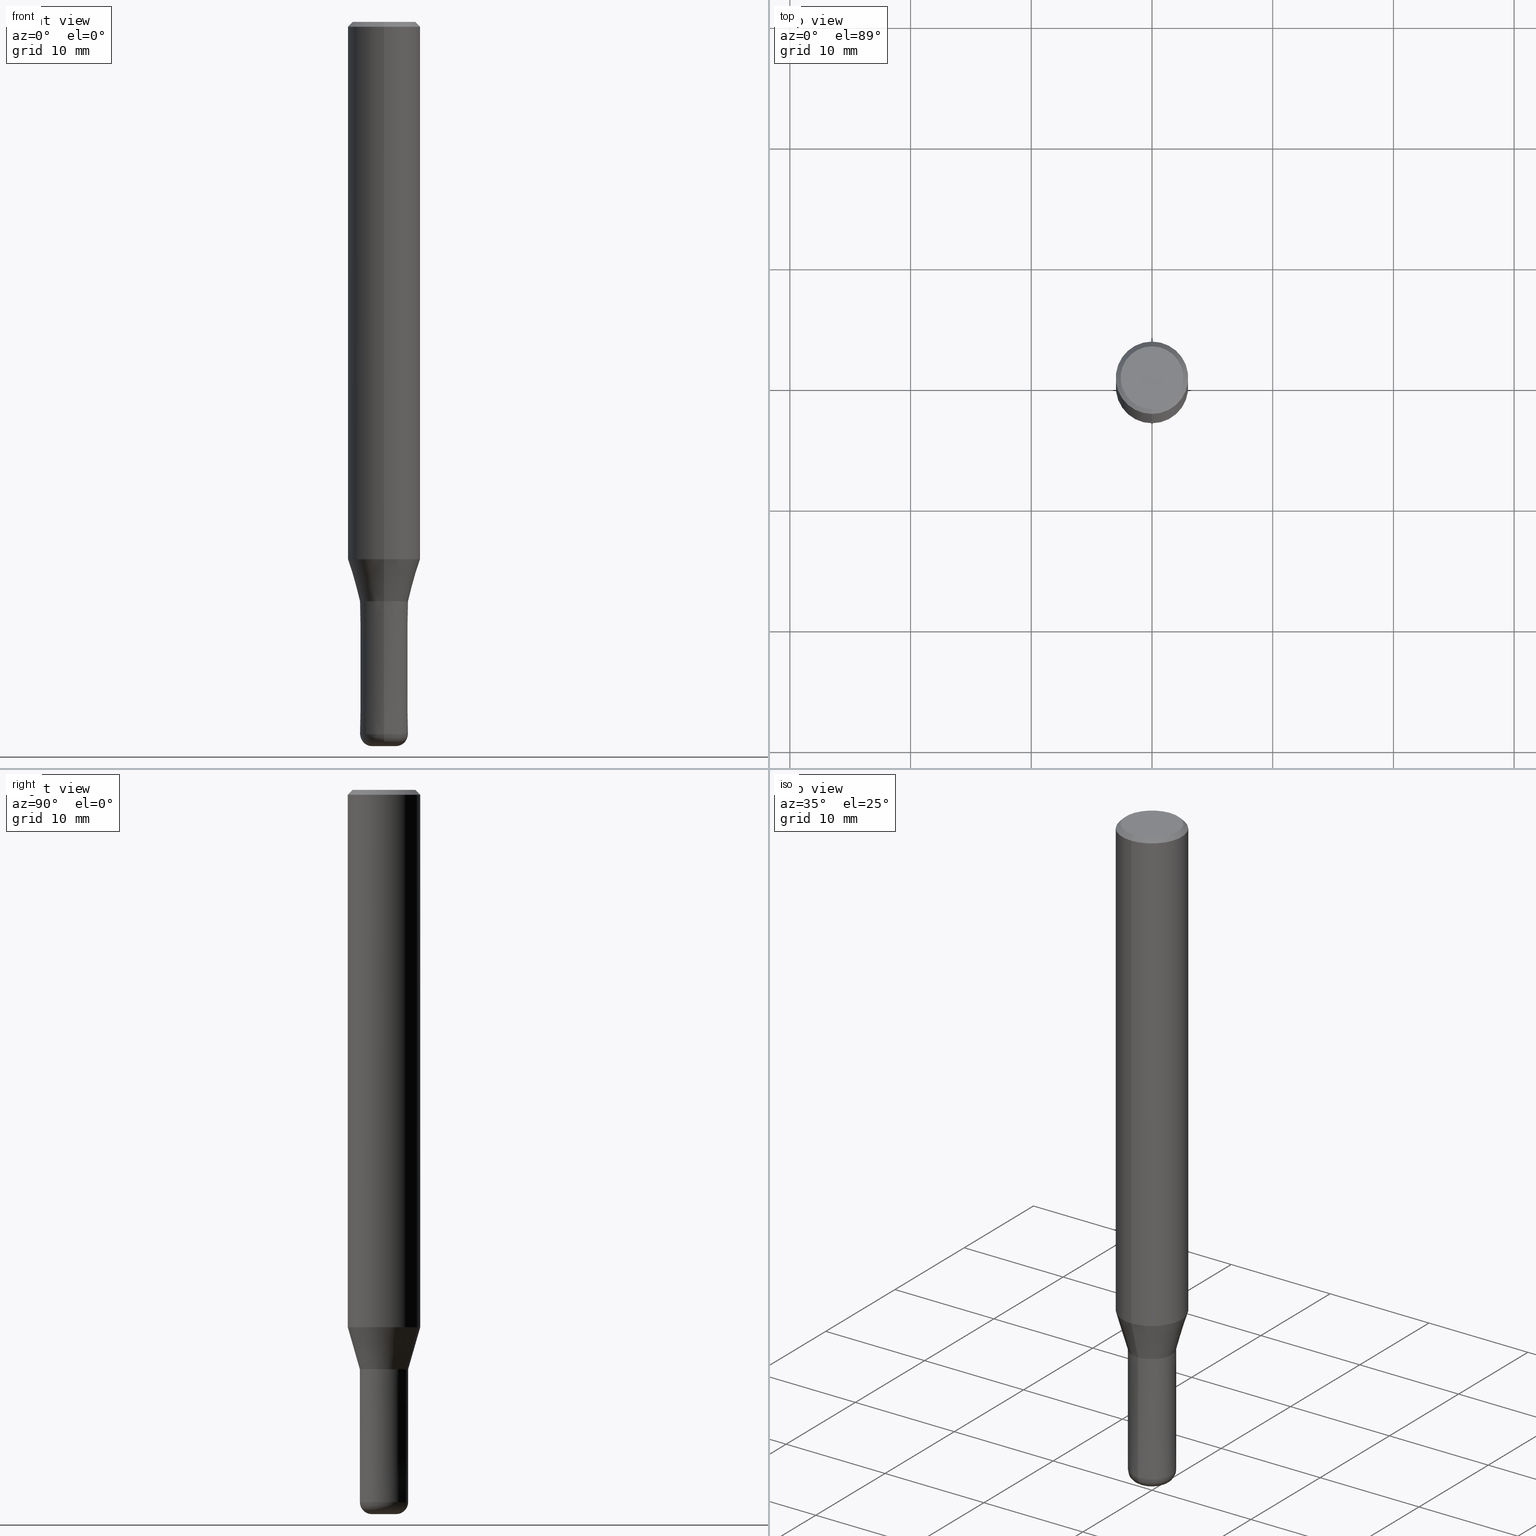
[diagram: canonical four-view strip — front | top / right | iso, engineering-drawing reading convention]
A machine part, canonical four-view strip (front | top / right | iso — engineering-drawing reading convention). The complete STEP part file that produces these views, byte-faithful:
ISO-10303-21;
HEADER;
FILE_DESCRIPTION(('no description'),'unknown implementation level');
FILE_NAME('CXRS5040-10-1200-Huellk.stp','  ',('CIMSOURCE GmbH'),('CADClick - KiM GmbH - www.kimweb.de'),'unknown preprocess','ACIS','unknown authorization');
FILE_SCHEMA(('automotive_design'));
ENDSEC;
DATA;
#1=MECHANICAL_DESIGN_GEOMETRIC_PRESENTATION_REPRESENTATION(' ',(#14,#15,#16,#17,#18,#19,#20,#21,#22,#23,#24,#25,#26,#27,#28,#29,#30,#31,#32,#33,#34,#35,#36,#37,#38,#39,#40,#41,#42,#43,#44,#45,#46,#47,#48,#49,#50,#51,#52,#53,#54,#55,#56,#57,#58,#59,#60,#61,#62,#63,#64,#65,#66,#67,#68,#69,#70,#71,#72,#73,#74,#75,#76,#77,#78,#79,#80,#81,#82,#83,#84,#85,#86,#87,#88,#89,#90,#91,#92,#93,#94,#95,#96,#97),#10);
#2=PRODUCT_DEFINITION_CONTEXT('',#98,'design');
#3=APPLICATION_PROTOCOL_DEFINITION('INTERNATIONAL STANDARD','automotive_design',1994,#98);
#4=PRODUCT_CATEGORY_RELATIONSHIP('NONE','NONE',#99,#100);
#5=SHAPE_DEFINITION_REPRESENTATION(#101,#102);
#6=PRODUCT_DEFINITION_CONTEXT('',#103,'design');
#7=APPLICATION_PROTOCOL_DEFINITION('INTERNATIONAL STANDARD','automotive_design',1994,#103);
#8=PRODUCT_CATEGORY_RELATIONSHIP('NONE','NONE',#104,#105);
#9=SHAPE_DEFINITION_REPRESENTATION(#106,#107);
#10= (GEOMETRIC_REPRESENTATION_CONTEXT(3)GLOBAL_UNCERTAINTY_ASSIGNED_CONTEXT((#110))GLOBAL_UNIT_ASSIGNED_CONTEXT((#112,#113,#114))REPRESENTATION_CONTEXT('NONE','WORKSPACE'));
#14=STYLED_ITEM('',(#116),#117);
#15=STYLED_ITEM('',(#118),#119);
#16=STYLED_ITEM('',(#120),#121);
#17=STYLED_ITEM('',(#122),#123);
#18=STYLED_ITEM('',(#124),#125);
#19=STYLED_ITEM('',(#126),#127);
#20=STYLED_ITEM('',(#128),#129);
#21=STYLED_ITEM('',(#130),#131);
#22=STYLED_ITEM('',(#132),#133);
#23=STYLED_ITEM('',(#134),#135);
#24=STYLED_ITEM('',(#136),#137);
#25=STYLED_ITEM('',(#138),#139);
#26=STYLED_ITEM('',(#140),#141);
#27=STYLED_ITEM('',(#142),#143);
#28=STYLED_ITEM('',(#144),#145);
#29=STYLED_ITEM('',(#146),#147);
#30=STYLED_ITEM('',(#148),#149);
#31=STYLED_ITEM('',(#150),#151);
#32=STYLED_ITEM('',(#152),#153);
#33=STYLED_ITEM('',(#154),#155);
#34=STYLED_ITEM('',(#156),#157);
#35=STYLED_ITEM('',(#158),#159);
#36=STYLED_ITEM('',(#160),#161);
#37=STYLED_ITEM('',(#162),#163);
#38=STYLED_ITEM('',(#164),#165);
#39=STYLED_ITEM('',(#166),#167);
#40=STYLED_ITEM('',(#168),#169);
#41=STYLED_ITEM('',(#170),#171);
#42=STYLED_ITEM('',(#172),#173);
#43=STYLED_ITEM('',(#174),#175);
#44=STYLED_ITEM('',(#176),#177);
#45=STYLED_ITEM('',(#178),#179);
#46=STYLED_ITEM('',(#180),#181);
#47=STYLED_ITEM('',(#182),#183);
#48=STYLED_ITEM('',(#184),#185);
#49=STYLED_ITEM('',(#186),#187);
#50=STYLED_ITEM('',(#188),#189);
#51=STYLED_ITEM('',(#190),#191);
#52=STYLED_ITEM('',(#192),#193);
#53=STYLED_ITEM('',(#194),#195);
#54=STYLED_ITEM('',(#196),#197);
#55=STYLED_ITEM('',(#198),#199);
#56=STYLED_ITEM('',(#200),#201);
#57=STYLED_ITEM('',(#202),#203);
#58=STYLED_ITEM('',(#204),#205);
#59=STYLED_ITEM('',(#206),#207);
#60=STYLED_ITEM('',(#208),#209);
#61=STYLED_ITEM('',(#210),#211);
#62=STYLED_ITEM('',(#212),#213);
#63=STYLED_ITEM('',(#214),#215);
#64=STYLED_ITEM('',(#216),#217);
#65=STYLED_ITEM('',(#218),#219);
#66=STYLED_ITEM('',(#220),#221);
#67=STYLED_ITEM('',(#222),#223);
#68=STYLED_ITEM('',(#224),#225);
#69=STYLED_ITEM('',(#226),#227);
#70=STYLED_ITEM('',(#228),#229);
#71=STYLED_ITEM('',(#230),#231);
#72=STYLED_ITEM('',(#232),#233);
#73=STYLED_ITEM('',(#234),#235);
#74=STYLED_ITEM('',(#236),#237);
#75=STYLED_ITEM('',(#238),#239);
#76=STYLED_ITEM('',(#240),#241);
#77=STYLED_ITEM('',(#242),#243);
#78=STYLED_ITEM('',(#244),#245);
#79=STYLED_ITEM('',(#246),#247);
#80=STYLED_ITEM('',(#248),#249);
#81=STYLED_ITEM('',(#250),#251);
#82=STYLED_ITEM('',(#252),#253);
#83=STYLED_ITEM('',(#254),#255);
#84=STYLED_ITEM('',(#256),#257);
#85=STYLED_ITEM('',(#258),#259);
#86=STYLED_ITEM('',(#260),#261);
#87=STYLED_ITEM('',(#262),#263);
#88=STYLED_ITEM('',(#264),#265);
#89=STYLED_ITEM('',(#266),#267);
#90=STYLED_ITEM('',(#268),#269);
#91=STYLED_ITEM('',(#270),#271);
#92=STYLED_ITEM('',(#272),#273);
#93=STYLED_ITEM('',(#274),#275);
#94=STYLED_ITEM('',(#276),#277);
#95=STYLED_ITEM('',(#278),#279);
#96=STYLED_ITEM('',(#280),#281);
#97=STYLED_ITEM('',(#282),#283);
#98=APPLICATION_CONTEXT(' ');
#99=PRODUCT_CATEGORY('part','NONE');
#100=PRODUCT_RELATED_PRODUCT_CATEGORY('detail',' ',(#284));
#101=PRODUCT_DEFINITION_SHAPE('NONE','NONE',#285);
#102=ADVANCED_BREP_SHAPE_REPRESENTATION('1',(#229,#286),#10);
#103=APPLICATION_CONTEXT(' ');
#104=PRODUCT_CATEGORY('part','NONE');
#105=PRODUCT_RELATED_PRODUCT_CATEGORY('detail',' ',(#287));
#106=PRODUCT_DEFINITION_SHAPE('NONE','NONE',#288);
#107=ADVANCED_BREP_SHAPE_REPRESENTATION('2',(#121,#289),#10);
#110=UNCERTAINTY_MEASURE_WITH_UNIT(LENGTH_MEASURE(1.0E-006),#112,'','');
#112= (CONVERSION_BASED_UNIT('MILLIMETRE',#292)LENGTH_UNIT()NAMED_UNIT(#295));
#113= (NAMED_UNIT(#297)PLANE_ANGLE_UNIT()SI_UNIT($,.RADIAN.));
#114= (NAMED_UNIT(#297)SOLID_ANGLE_UNIT()SI_UNIT($,.STERADIAN.));
#116=PRESENTATION_STYLE_ASSIGNMENT((#303));
#117=VERTEX_POINT('',#304);
#118=PRESENTATION_STYLE_ASSIGNMENT((#305));
#119=ADVANCED_FACE('',(#306),#307,.T.);
#120=PRESENTATION_STYLE_ASSIGNMENT((#308));
#121=MANIFOLD_SOLID_BREP('2',#309);
#122=PRESENTATION_STYLE_ASSIGNMENT((#310));
#123=EDGE_CURVE('',#251,#269,#311,.T.);
#124=PRESENTATION_STYLE_ASSIGNMENT((#312));
#125=EDGE_CURVE('',#167,#211,#313,.T.);
#126=PRESENTATION_STYLE_ASSIGNMENT((#314));
#127=EDGE_CURVE('',#255,#181,#315,.T.);
#128=PRESENTATION_STYLE_ASSIGNMENT((#316));
#129=VERTEX_POINT('',#317);
#130=PRESENTATION_STYLE_ASSIGNMENT((#318));
#131=VERTEX_POINT('',#319);
#132=PRESENTATION_STYLE_ASSIGNMENT((#320));
#133=EDGE_CURVE('',#243,#235,#321,.T.);
#134=PRESENTATION_STYLE_ASSIGNMENT((#322));
#135=ADVANCED_FACE('',(#323),#324,.T.);
#136=PRESENTATION_STYLE_ASSIGNMENT((#325));
#137=EDGE_CURVE('',#117,#187,#326,.T.);
#138=PRESENTATION_STYLE_ASSIGNMENT((#327));
#139=EDGE_CURVE('',#131,#129,#328,.T.);
#140=PRESENTATION_STYLE_ASSIGNMENT((#329));
#141=EDGE_CURVE('',#257,#263,#330,.T.);
#142=PRESENTATION_STYLE_ASSIGNMENT((#331));
#143=VERTEX_POINT('',#332);
#144=PRESENTATION_STYLE_ASSIGNMENT((#333));
#145=EDGE_CURVE('',#129,#199,#334,.T.);
#146=PRESENTATION_STYLE_ASSIGNMENT((#335));
#147=ADVANCED_FACE('',(#336),#337,.T.);
#148=PRESENTATION_STYLE_ASSIGNMENT((#338));
#149=ADVANCED_FACE('',(#339),#340,.T.);
#150=PRESENTATION_STYLE_ASSIGNMENT((#341));
#151=ADVANCED_FACE('',(#342),#343,.T.);
#152=PRESENTATION_STYLE_ASSIGNMENT((#344));
#153=EDGE_CURVE('',#263,#193,#345,.T.);
#154=PRESENTATION_STYLE_ASSIGNMENT((#346));
#155=EDGE_CURVE('',#161,#131,#347,.T.);
#156=PRESENTATION_STYLE_ASSIGNMENT((#348));
#157=ADVANCED_FACE('',(#349),#350,.T.);
#158=PRESENTATION_STYLE_ASSIGNMENT((#351));
#159=EDGE_CURVE('',#193,#255,#352,.T.);
#160=PRESENTATION_STYLE_ASSIGNMENT((#353));
#161=VERTEX_POINT('',#354);
#162=PRESENTATION_STYLE_ASSIGNMENT((#355));
#163=VERTEX_POINT('',#356);
#164=PRESENTATION_STYLE_ASSIGNMENT((#357));
#165=EDGE_CURVE('',#187,#167,#358,.T.);
#166=PRESENTATION_STYLE_ASSIGNMENT((#359));
#167=VERTEX_POINT('',#360);
#168=PRESENTATION_STYLE_ASSIGNMENT((#361));
#169=ADVANCED_FACE('',(#362,#363),#364,.T.);
#170=PRESENTATION_STYLE_ASSIGNMENT((#365));
#171=ADVANCED_FACE('',(#366),#367,.T.);
#172=PRESENTATION_STYLE_ASSIGNMENT((#368));
#173=EDGE_CURVE('',#263,#257,#369,.T.);
#174=PRESENTATION_STYLE_ASSIGNMENT((#370));
#175=EDGE_CURVE('',#199,#129,#371,.T.);
#176=PRESENTATION_STYLE_ASSIGNMENT((#372));
#177=EDGE_CURVE('',#223,#189,#373,.T.);
#178=PRESENTATION_STYLE_ASSIGNMENT((#374));
#179=EDGE_CURVE('',#163,#253,#375,.T.);
#180=PRESENTATION_STYLE_ASSIGNMENT((#376));
#181=VERTEX_POINT('',#377);
#182=PRESENTATION_STYLE_ASSIGNMENT((#378));
#183=EDGE_CURVE('',#269,#233,#379,.T.);
#184=PRESENTATION_STYLE_ASSIGNMENT((#380));
#185=EDGE_CURVE('',#189,#253,#381,.T.);
#186=PRESENTATION_STYLE_ASSIGNMENT((#382));
#187=VERTEX_POINT('',#383);
#188=PRESENTATION_STYLE_ASSIGNMENT((#384));
#189=VERTEX_POINT('',#385);
#190=PRESENTATION_STYLE_ASSIGNMENT((#386));
#191=ADVANCED_FACE('',(#387),#388,.T.);
#192=PRESENTATION_STYLE_ASSIGNMENT((#389));
#193=VERTEX_POINT('',#390);
#194=PRESENTATION_STYLE_ASSIGNMENT((#391));
#195=EDGE_CURVE('',#255,#193,#392,.T.);
#196=PRESENTATION_STYLE_ASSIGNMENT((#393));
#197=EDGE_CURVE('',#117,#211,#394,.T.);
#198=PRESENTATION_STYLE_ASSIGNMENT((#395));
#199=VERTEX_POINT('',#396);
#200=PRESENTATION_STYLE_ASSIGNMENT((#397));
#201=EDGE_CURVE('',#163,#243,#398,.T.);
#202=PRESENTATION_STYLE_ASSIGNMENT((#399));
#203=ADVANCED_FACE('',(#400,#401),#402,.T.);
#204=PRESENTATION_STYLE_ASSIGNMENT((#403));
#205=ADVANCED_FACE('',(#404,#405),#406,.T.);
#206=PRESENTATION_STYLE_ASSIGNMENT((#407));
#207=ADVANCED_FACE('',(#408),#409,.T.);
#208=PRESENTATION_STYLE_ASSIGNMENT((#410));
#209=ADVANCED_FACE('',(#411),#412,.T.);
#210=PRESENTATION_STYLE_ASSIGNMENT((#413));
#211=VERTEX_POINT('',#414);
#212=PRESENTATION_STYLE_ASSIGNMENT((#415));
#213=EDGE_CURVE('',#167,#187,#416,.T.);
#214=PRESENTATION_STYLE_ASSIGNMENT((#417));
#215=EDGE_CURVE('',#251,#279,#418,.T.);
#216=PRESENTATION_STYLE_ASSIGNMENT((#419));
#217=ADVANCED_FACE('',(#420),#421,.T.);
#218=PRESENTATION_STYLE_ASSIGNMENT((#422));
#219=ADVANCED_FACE('',(#423),#424,.T.);
#220=PRESENTATION_STYLE_ASSIGNMENT((#425));
#221=ADVANCED_FACE('',(#426),#427,.T.);
#222=PRESENTATION_STYLE_ASSIGNMENT((#428));
#223=VERTEX_POINT('',#429);
#224=PRESENTATION_STYLE_ASSIGNMENT((#430));
#225=EDGE_CURVE('',#199,#161,#431,.T.);
#226=PRESENTATION_STYLE_ASSIGNMENT((#432));
#227=EDGE_CURVE('',#211,#117,#433,.T.);
#228=PRESENTATION_STYLE_ASSIGNMENT((#434));
#229=MANIFOLD_SOLID_BREP('1',#435);
#230=PRESENTATION_STYLE_ASSIGNMENT((#436));
#231=EDGE_CURVE('',#143,#181,#437,.T.);
#232=PRESENTATION_STYLE_ASSIGNMENT((#438));
#233=VERTEX_POINT('',#439);
#234=PRESENTATION_STYLE_ASSIGNMENT((#440));
#235=VERTEX_POINT('',#441);
#236=PRESENTATION_STYLE_ASSIGNMENT((#442));
#237=EDGE_CURVE('',#253,#163,#443,.T.);
#238=PRESENTATION_STYLE_ASSIGNMENT((#444));
#239=EDGE_CURVE('',#233,#279,#445,.T.);
#240=PRESENTATION_STYLE_ASSIGNMENT((#446));
#241=EDGE_CURVE('',#189,#243,#447,.T.);
#242=PRESENTATION_STYLE_ASSIGNMENT((#448));
#243=VERTEX_POINT('',#449);
#244=PRESENTATION_STYLE_ASSIGNMENT((#450));
#245=ADVANCED_FACE('',(#451),#452,.F.);
#246=PRESENTATION_STYLE_ASSIGNMENT((#453));
#247=EDGE_CURVE('',#143,#193,#454,.T.);
#248=PRESENTATION_STYLE_ASSIGNMENT((#455));
#249=ADVANCED_FACE('',(#456),#457,.T.);
#250=PRESENTATION_STYLE_ASSIGNMENT((#458));
#251=VERTEX_POINT('',#459);
#252=PRESENTATION_STYLE_ASSIGNMENT((#460));
#253=VERTEX_POINT('',#461);
#254=PRESENTATION_STYLE_ASSIGNMENT((#462));
#255=VERTEX_POINT('',#463);
#256=PRESENTATION_STYLE_ASSIGNMENT((#464));
#257=VERTEX_POINT('',#465);
#258=PRESENTATION_STYLE_ASSIGNMENT((#466));
#259=EDGE_CURVE('',#255,#257,#467,.T.);
#260=PRESENTATION_STYLE_ASSIGNMENT((#468));
#261=EDGE_CURVE('',#131,#161,#469,.T.);
#262=PRESENTATION_STYLE_ASSIGNMENT((#470));
#263=VERTEX_POINT('',#471);
#264=PRESENTATION_STYLE_ASSIGNMENT((#472));
#265=EDGE_CURVE('',#279,#251,#473,.T.);
#266=PRESENTATION_STYLE_ASSIGNMENT((#474));
#267=ADVANCED_FACE('',(#475),#476,.F.);
#268=PRESENTATION_STYLE_ASSIGNMENT((#477));
#269=VERTEX_POINT('',#478);
#270=PRESENTATION_STYLE_ASSIGNMENT((#479));
#271=EDGE_CURVE('',#181,#143,#480,.T.);
#272=PRESENTATION_STYLE_ASSIGNMENT((#481));
#273=EDGE_CURVE('',#233,#269,#482,.T.);
#274=PRESENTATION_STYLE_ASSIGNMENT((#483));
#275=EDGE_CURVE('',#223,#235,#484,.T.);
#276=PRESENTATION_STYLE_ASSIGNMENT((#485));
#277=EDGE_CURVE('',#235,#223,#486,.T.);
#278=PRESENTATION_STYLE_ASSIGNMENT((#487));
#279=VERTEX_POINT('',#488);
#280=PRESENTATION_STYLE_ASSIGNMENT((#489));
#281=ADVANCED_FACE('',(#490,#491),#492,.T.);
#282=PRESENTATION_STYLE_ASSIGNMENT((#493));
#283=EDGE_CURVE('',#243,#189,#494,.T.);
#284=PRODUCT('1','1','PART-1-DESC',(#495));
#285=PRODUCT_DEFINITION('NONE','NONE',#496,#2);
#286=AXIS2_PLACEMENT_3D('',#497,#498,#499);
#287=PRODUCT('2','2','PART-2-DESC',(#500));
#288=PRODUCT_DEFINITION('NONE','NONE',#501,#6);
#289=AXIS2_PLACEMENT_3D('',#502,#503,#504);
#292=LENGTH_MEASURE_WITH_UNIT(LENGTH_MEASURE(1.0),#505);
#295=DIMENSIONAL_EXPONENTS(1.0,0.0,0.0,0.0,0.0,0.0,0.0);
#297=DIMENSIONAL_EXPONENTS(0.0,0.0,0.0,0.0,0.0,0.0,0.0);
#303=POINT_STYLE(' ',#506,POSITIVE_LENGTH_MEASURE(1.0E-006),#507);
#304=CARTESIAN_POINT('',(0.0,0.9,-48.0));
#305=SURFACE_STYLE_USAGE(.BOTH.,#508);
#306=FACE_OUTER_BOUND('',#509,.T.);
#307=CYLINDRICAL_SURFACE('',#510,3.0);
#308=SURFACE_STYLE_USAGE(.BOTH.,#511);
#309=CLOSED_SHELL('',(#245,#157,#171,#203,#217,#209,#281,#267));
#310=CURVE_STYLE('',#512,POSITIVE_LENGTH_MEASURE(1.0E-006),#513);
#311=LINE('',#514,#515);
#312=CURVE_STYLE('',#516,POSITIVE_LENGTH_MEASURE(1.0E-006),#517);
#313=LINE('',#518,#519);
#314=CURVE_STYLE('',#520,POSITIVE_LENGTH_MEASURE(1.0E-006),#521);
#315=LINE('',#522,#523);
#316=POINT_STYLE(' ',#524,POSITIVE_LENGTH_MEASURE(1.0E-006),#525);
#317=CARTESIAN_POINT('',(3.67375783114944E-016,-2.99995,-44.513));
#318=POINT_STYLE(' ',#526,POSITIVE_LENGTH_MEASURE(1.0E-006),#527);
#319=CARTESIAN_POINT('',(2.44915147732706E-016,-1.99995,-48.0));
#320=CURVE_STYLE('',#528,POSITIVE_LENGTH_MEASURE(1.0E-006),#529);
#321=LINE('',#530,#531);
#322=SURFACE_STYLE_USAGE(.BOTH.,#532);
#323=FACE_OUTER_BOUND('',#533,.T.);
#324=CONICAL_SURFACE('',#534,2.49995,0.279284171542493);
#325=CURVE_STYLE('',#535,POSITIVE_LENGTH_MEASURE(1.0E-006),#536);
#326=LINE('',#537,#538);
#327=CURVE_STYLE('',#539,POSITIVE_LENGTH_MEASURE(1.0E-006),#540);
#328=LINE('',#541,#542);
#329=CURVE_STYLE('',#543,POSITIVE_LENGTH_MEASURE(1.0E-006),#544);
#330=CIRCLE('',#545,1.0);
#331=POINT_STYLE(' ',#546,POSITIVE_LENGTH_MEASURE(1.0E-006),#547);
#332=CARTESIAN_POINT('',(0.0,1.9999,-48.0));
#333=CURVE_STYLE('',#548,POSITIVE_LENGTH_MEASURE(1.0E-006),#549);
#334=CIRCLE('',#550,2.99995);
#335=SURFACE_STYLE_USAGE(.BOTH.,#551);
#336=FACE_OUTER_BOUND('',#552,.T.);
#337=CYLINDRICAL_SURFACE('',#553,0.9);
#338=SURFACE_STYLE_USAGE(.BOTH.,#554);
#339=FACE_OUTER_BOUND('',#555,.T.);
#340=CONICAL_SURFACE('',#556,2.8,0.78539816339745);
#341=SURFACE_STYLE_USAGE(.BOTH.,#557);
#342=FACE_OUTER_BOUND('',#558,.T.);
#343=CYLINDRICAL_SURFACE('',#559,0.9);
#344=CURVE_STYLE('',#560,POSITIVE_LENGTH_MEASURE(1.0E-006),#561);
#345=CIRCLE('',#562,1.0);
#346=CURVE_STYLE('',#563,POSITIVE_LENGTH_MEASURE(1.0E-006),#564);
#347=CIRCLE('',#565,1.99995);
#348=SURFACE_STYLE_USAGE(.BOTH.,#566);
#349=FACE_OUTER_BOUND('',#567,.T.);
#350=TOROIDAL_SURFACE('',#568,0.999999999999999,1.0);
#351=CURVE_STYLE('',#569,POSITIVE_LENGTH_MEASURE(1.0E-006),#570);
#352=CIRCLE('',#571,2.0);
#353=POINT_STYLE(' ',#572,POSITIVE_LENGTH_MEASURE(1.0E-006),#573);
#354=CARTESIAN_POINT('',(0.0,1.99995,-48.0));
#355=POINT_STYLE(' ',#574,POSITIVE_LENGTH_MEASURE(1.0E-006),#575);
#356=CARTESIAN_POINT('',(3.67381906146713E-016,-3.0,-44.513));
#357=CURVE_STYLE('',#576,POSITIVE_LENGTH_MEASURE(1.0E-006),#577);
#358=CIRCLE('',#578,0.9);
#359=POINT_STYLE(' ',#579,POSITIVE_LENGTH_MEASURE(1.0E-006),#580);
#360=CARTESIAN_POINT('',(1.10214571844014E-016,-0.9,-60.0));
#361=SURFACE_STYLE_USAGE(.BOTH.,#581);
#362=FACE_BOUND('',#582,.T.);
#363=FACE_OUTER_BOUND('',#583,.T.);
#364=PLANE('',#584);
#365=SURFACE_STYLE_USAGE(.BOTH.,#585);
#366=FACE_OUTER_BOUND('',#586,.T.);
#367=CONICAL_SURFACE('',#587,1.99995,9.09090909065765E-006);
#368=CURVE_STYLE('',#588,POSITIVE_LENGTH_MEASURE(1.0E-006),#589);
#369=CIRCLE('',#590,1.0);
#370=CURVE_STYLE('',#591,POSITIVE_LENGTH_MEASURE(1.0E-006),#592);
#371=CIRCLE('',#593,2.99995);
#372=CURVE_STYLE('',#594,POSITIVE_LENGTH_MEASURE(1.0E-006),#595);
#373=LINE('',#596,#597);
#374=CURVE_STYLE('',#598,POSITIVE_LENGTH_MEASURE(1.0E-006),#599);
#375=CIRCLE('',#600,3.0);
#376=POINT_STYLE(' ',#601,POSITIVE_LENGTH_MEASURE(1.0E-006),#602);
#377=CARTESIAN_POINT('',(2.44909024700937E-016,-1.9999,-48.0));
#378=CURVE_STYLE('',#603,POSITIVE_LENGTH_MEASURE(1.0E-006),#604);
#379=CIRCLE('',#605,0.9);
#380=CURVE_STYLE('',#606,POSITIVE_LENGTH_MEASURE(1.0E-006),#607);
#381=LINE('',#608,#609);
#382=POINT_STYLE(' ',#610,POSITIVE_LENGTH_MEASURE(1.0E-006),#611);
#383=CARTESIAN_POINT('',(0.0,0.9,-60.0));
#384=POINT_STYLE(' ',#612,POSITIVE_LENGTH_MEASURE(1.0E-006),#613);
#385=CARTESIAN_POINT('',(0.0,3.0,-0.399999999999999));
#386=SURFACE_STYLE_USAGE(.BOTH.,#614);
#387=FACE_OUTER_BOUND('',#615,.T.);
#388=CONICAL_SURFACE('',#616,2.8,0.78539816339745);
#389=POINT_STYLE(' ',#617,POSITIVE_LENGTH_MEASURE(1.0E-006),#618);
#390=CARTESIAN_POINT('',(0.0,2.0,-59.0));
#391=CURVE_STYLE('',#619,POSITIVE_LENGTH_MEASURE(1.0E-006),#620);
#392=CIRCLE('',#621,2.0);
#393=CURVE_STYLE('',#622,POSITIVE_LENGTH_MEASURE(1.0E-006),#623);
#394=CIRCLE('',#624,0.9);
#395=POINT_STYLE(' ',#625,POSITIVE_LENGTH_MEASURE(1.0E-006),#626);
#396=CARTESIAN_POINT('',(0.0,2.99995,-44.513));
#397=CURVE_STYLE('',#627,POSITIVE_LENGTH_MEASURE(1.0E-006),#628);
#398=LINE('',#629,#630);
#399=SURFACE_STYLE_USAGE(.BOTH.,#631);
#400=FACE_OUTER_BOUND('',#632,.T.);
#401=FACE_BOUND('',#633,.T.);
#402=PLANE('',#634);
#403=SURFACE_STYLE_USAGE(.BOTH.,#635);
#404=FACE_OUTER_BOUND('',#636,.T.);
#405=FACE_BOUND('',#637,.T.);
#406=PLANE('',#638);
#407=SURFACE_STYLE_USAGE(.BOTH.,#639);
#408=FACE_OUTER_BOUND('',#640,.T.);
#409=CYLINDRICAL_SURFACE('',#641,3.0);
#410=SURFACE_STYLE_USAGE(.BOTH.,#642);
#411=FACE_OUTER_BOUND('',#643,.T.);
#412=TOROIDAL_SURFACE('',#644,0.999999999999999,1.0);
#413=POINT_STYLE(' ',#645,POSITIVE_LENGTH_MEASURE(1.0E-006),#646);
#414=CARTESIAN_POINT('',(1.10214571844014E-016,-0.9,-48.0));
#415=CURVE_STYLE('',#647,POSITIVE_LENGTH_MEASURE(1.0E-006),#648);
#416=CIRCLE('',#649,0.9);
#417=CURVE_STYLE('',#650,POSITIVE_LENGTH_MEASURE(1.0E-006),#651);
#418=CIRCLE('',#652,0.9);
#419=SURFACE_STYLE_USAGE(.BOTH.,#653);
#420=FACE_OUTER_BOUND('',#654,.T.);
#421=CONICAL_SURFACE('',#655,1.99995,9.09090909065765E-006);
#422=SURFACE_STYLE_USAGE(.BOTH.,#656);
#423=FACE_OUTER_BOUND('',#657,.T.);
#424=CONICAL_SURFACE('',#658,2.49995,0.279284171542493);
#425=SURFACE_STYLE_USAGE(.BOTH.,#659);
#426=FACE_OUTER_BOUND('',#660,.T.);
#427=PLANE('',#661);
#428=POINT_STYLE(' ',#662,POSITIVE_LENGTH_MEASURE(1.0E-006),#663);
#429=CARTESIAN_POINT('',(0.0,2.6,0.0));
#430=CURVE_STYLE('',#664,POSITIVE_LENGTH_MEASURE(1.0E-006),#665);
#431=LINE('',#666,#667);
#432=CURVE_STYLE('',#668,POSITIVE_LENGTH_MEASURE(1.0E-006),#669);
#433=CIRCLE('',#670,0.9);
#434=SURFACE_STYLE_USAGE(.BOTH.,#671);
#435=CLOSED_SHELL('',(#147,#219,#119,#149,#205,#221,#191,#207,#135,#169,#151,#249));
#436=CURVE_STYLE('',#672,POSITIVE_LENGTH_MEASURE(1.0E-006),#673);
#437=CIRCLE('',#674,1.9999);
#438=POINT_STYLE(' ',#675,POSITIVE_LENGTH_MEASURE(1.0E-006),#676);
#439=CARTESIAN_POINT('',(0.0,0.9,-48.0));
#440=POINT_STYLE(' ',#677,POSITIVE_LENGTH_MEASURE(1.0E-006),#678);
#441=CARTESIAN_POINT('',(3.18397651993818E-016,-2.6,0.0));
#442=CURVE_STYLE('',#679,POSITIVE_LENGTH_MEASURE(1.0E-006),#680);
#443=CIRCLE('',#681,3.0);
#444=CURVE_STYLE('',#682,POSITIVE_LENGTH_MEASURE(1.0E-006),#683);
#445=LINE('',#684,#685);
#446=CURVE_STYLE('',#686,POSITIVE_LENGTH_MEASURE(1.0E-006),#687);
#447=CIRCLE('',#688,3.0);
#448=POINT_STYLE(' ',#689,POSITIVE_LENGTH_MEASURE(1.0E-006),#690);
#449=CARTESIAN_POINT('',(3.67381906146713E-016,-3.0,-0.399999999999999));
#450=SURFACE_STYLE_USAGE(.BOTH.,#691);
#451=FACE_OUTER_BOUND('',#692,.T.);
#452=CYLINDRICAL_SURFACE('',#693,0.9);
#453=CURVE_STYLE('',#694,POSITIVE_LENGTH_MEASURE(1.0E-006),#695);
#454=LINE('',#696,#697);
#455=SURFACE_STYLE_USAGE(.BOTH.,#698);
#456=FACE_OUTER_BOUND('',#699,.T.);
#457=PLANE('',#700);
#458=POINT_STYLE(' ',#701,POSITIVE_LENGTH_MEASURE(1.0E-006),#702);
#459=CARTESIAN_POINT('',(1.10214571844014E-016,-0.9,-59.9));
#460=POINT_STYLE(' ',#703,POSITIVE_LENGTH_MEASURE(1.0E-006),#704);
#461=CARTESIAN_POINT('',(0.0,3.0,-44.513));
#462=POINT_STYLE(' ',#705,POSITIVE_LENGTH_MEASURE(1.0E-006),#706);
#463=CARTESIAN_POINT('',(2.44921270764476E-016,-2.0,-59.0));
#464=POINT_STYLE(' ',#707,POSITIVE_LENGTH_MEASURE(1.0E-006),#708);
#465=CARTESIAN_POINT('',(1.22460635382238E-016,-1.0,-60.0));
#466=CURVE_STYLE('',#709,POSITIVE_LENGTH_MEASURE(1.0E-006),#710);
#467=CIRCLE('',#711,1.0);
#468=CURVE_STYLE('',#712,POSITIVE_LENGTH_MEASURE(1.0E-006),#713);
#469=CIRCLE('',#714,1.99995);
#470=POINT_STYLE(' ',#715,POSITIVE_LENGTH_MEASURE(1.0E-006),#716);
#471=CARTESIAN_POINT('',(0.0,1.0,-60.0));
#472=CURVE_STYLE('',#717,POSITIVE_LENGTH_MEASURE(1.0E-006),#718);
#473=CIRCLE('',#719,0.9);
#474=SURFACE_STYLE_USAGE(.BOTH.,#720);
#475=FACE_OUTER_BOUND('',#721,.T.);
#476=CYLINDRICAL_SURFACE('',#722,0.9);
#477=POINT_STYLE(' ',#723,POSITIVE_LENGTH_MEASURE(1.0E-006),#724);
#478=CARTESIAN_POINT('',(1.10214571844014E-016,-0.9,-48.0));
#479=CURVE_STYLE('',#725,POSITIVE_LENGTH_MEASURE(1.0E-006),#726);
#480=CIRCLE('',#727,1.9999);
#481=CURVE_STYLE('',#728,POSITIVE_LENGTH_MEASURE(1.0E-006),#729);
#482=CIRCLE('',#730,0.9);
#483=CURVE_STYLE('',#731,POSITIVE_LENGTH_MEASURE(1.0E-006),#732);
#484=CIRCLE('',#733,2.6);
#485=CURVE_STYLE('',#734,POSITIVE_LENGTH_MEASURE(1.0E-006),#735);
#486=CIRCLE('',#736,2.6);
#487=POINT_STYLE(' ',#737,POSITIVE_LENGTH_MEASURE(1.0E-006),#738);
#488=CARTESIAN_POINT('',(0.0,0.9,-59.9));
#489=SURFACE_STYLE_USAGE(.BOTH.,#739);
#490=FACE_BOUND('',#740,.T.);
#491=FACE_OUTER_BOUND('',#741,.T.);
#492=PLANE('',#742);
#493=CURVE_STYLE('',#743,POSITIVE_LENGTH_MEASURE(1.0E-006),#744);
#494=CIRCLE('',#745,3.0);
#495=PRODUCT_CONTEXT('',#98,'mechanical');
#496=PRODUCT_DEFINITION_FORMATION_WITH_SPECIFIED_SOURCE(' ','NONE',#284,.NOT_KNOWN.);
#497=CARTESIAN_POINT('',(0.0,0.0,0.0));
#498=DIRECTION('',(0.0,0.0,1.0));
#499=DIRECTION('',(1.0,0.0,0.0));
#500=PRODUCT_CONTEXT('',#103,'mechanical');
#501=PRODUCT_DEFINITION_FORMATION_WITH_SPECIFIED_SOURCE(' ','NONE',#287,.NOT_KNOWN.);
#502=CARTESIAN_POINT('',(0.0,0.0,0.0));
#503=DIRECTION('',(0.0,0.0,1.0));
#504=DIRECTION('',(1.0,0.0,0.0));
#505= (NAMED_UNIT(#295)LENGTH_UNIT()SI_UNIT(.MILLI.,.METRE.));
#506=PRE_DEFINED_MARKER('');
#507=COLOUR_RGB('',0.800000011920929,0.800000011920929,0.800000011920929);
#508=SURFACE_SIDE_STYLE('',(#747));
#509=EDGE_LOOP('',(#748,#749,#750,#751));
#510=AXIS2_PLACEMENT_3D('',#752,#753,#754);
#511=SURFACE_SIDE_STYLE('',(#755));
#512=DRAUGHTING_PRE_DEFINED_CURVE_FONT('continuous');
#513=COLOUR_RGB('',0.498039215803146,0.498039215803146,0.498039215803146);
#514=CARTESIAN_POINT('',(1.10214571844014E-016,-0.9,-53.95));
#515=VECTOR('',#756,1.0);
#516=DRAUGHTING_PRE_DEFINED_CURVE_FONT('continuous');
#517=COLOUR_RGB('',0.800000011920929,0.800000011920929,0.800000011920929);
#518=CARTESIAN_POINT('',(1.10214571844014E-016,-0.9,-54.0));
#519=VECTOR('',#757,1.0);
#520=DRAUGHTING_PRE_DEFINED_CURVE_FONT('continuous');
#521=COLOUR_RGB('',0.800000011920929,0.800000011920929,0.800000011920929);
#522=CARTESIAN_POINT('',(2.44915147732706E-016,-1.99995,-53.5));
#523=VECTOR('',#758,1.0);
#524=PRE_DEFINED_MARKER('');
#525=COLOUR_RGB('',0.498039215803146,0.498039215803146,0.498039215803146);
#526=PRE_DEFINED_MARKER('');
#527=COLOUR_RGB('',0.498039215803146,0.498039215803146,0.498039215803146);
#528=DRAUGHTING_PRE_DEFINED_CURVE_FONT('continuous');
#529=COLOUR_RGB('',0.498039215803146,0.498039215803146,0.498039215803146);
#530=CARTESIAN_POINT('',(3.42889779070266E-016,-2.8,-0.200000000000003));
#531=VECTOR('',#759,1.0);
#532=SURFACE_SIDE_STYLE('',(#760));
#533=EDGE_LOOP('',(#761,#762,#763,#764));
#534=AXIS2_PLACEMENT_3D('',#765,#766,#767);
#535=DRAUGHTING_PRE_DEFINED_CURVE_FONT('continuous');
#536=COLOUR_RGB('',0.800000011920929,0.800000011920929,0.800000011920929);
#537=CARTESIAN_POINT('',(-1.10214571844014E-016,0.9,-54.0));
#538=VECTOR('',#768,1.0);
#539=DRAUGHTING_PRE_DEFINED_CURVE_FONT('continuous');
#540=COLOUR_RGB('',0.498039215803146,0.498039215803146,0.498039215803146);
#541=CARTESIAN_POINT('',(3.06145465423825E-016,-2.49995,-46.2565));
#542=VECTOR('',#769,1.0);
#543=DRAUGHTING_PRE_DEFINED_CURVE_FONT('continuous');
#544=COLOUR_RGB('',0.800000011920929,0.800000011920929,0.800000011920929);
#545=AXIS2_PLACEMENT_3D('',#770,#771,#772);
#546=PRE_DEFINED_MARKER('');
#547=COLOUR_RGB('',0.800000011920929,0.800000011920929,0.800000011920929);
#548=DRAUGHTING_PRE_DEFINED_CURVE_FONT('continuous');
#549=COLOUR_RGB('',0.498039215803146,0.498039215803146,0.498039215803146);
#550=AXIS2_PLACEMENT_3D('',#773,#774,#775);
#551=SURFACE_SIDE_STYLE('',(#776));
#552=EDGE_LOOP('',(#777,#778,#779,#780));
#553=AXIS2_PLACEMENT_3D('',#781,#782,#783);
#554=SURFACE_SIDE_STYLE('',(#784));
#555=EDGE_LOOP('',(#785,#786,#787,#788));
#556=AXIS2_PLACEMENT_3D('',#789,#790,#791);
#557=SURFACE_SIDE_STYLE('',(#792));
#558=EDGE_LOOP('',(#793,#794,#795,#796));
#559=AXIS2_PLACEMENT_3D('',#797,#798,#799);
#560=DRAUGHTING_PRE_DEFINED_CURVE_FONT('continuous');
#561=COLOUR_RGB('',0.800000011920929,0.800000011920929,0.800000011920929);
#562=AXIS2_PLACEMENT_3D('',#800,#801,#802);
#563=DRAUGHTING_PRE_DEFINED_CURVE_FONT('continuous');
#564=COLOUR_RGB('',0.498039215803146,0.498039215803146,0.498039215803146);
#565=AXIS2_PLACEMENT_3D('',#803,#804,#805);
#566=SURFACE_SIDE_STYLE('',(#806));
#567=EDGE_LOOP('',(#807,#808,#809,#810));
#568=AXIS2_PLACEMENT_3D('',#811,#812,#813);
#569=DRAUGHTING_PRE_DEFINED_CURVE_FONT('continuous');
#570=COLOUR_RGB('',0.800000011920929,0.800000011920929,0.800000011920929);
#571=AXIS2_PLACEMENT_3D('',#814,#815,#816);
#572=PRE_DEFINED_MARKER('');
#573=COLOUR_RGB('',0.498039215803146,0.498039215803146,0.498039215803146);
#574=PRE_DEFINED_MARKER('');
#575=COLOUR_RGB('',0.498039215803146,0.498039215803146,0.498039215803146);
#576=DRAUGHTING_PRE_DEFINED_CURVE_FONT('continuous');
#577=COLOUR_RGB('',0.800000011920929,0.800000011920929,0.800000011920929);
#578=AXIS2_PLACEMENT_3D('',#817,#818,#819);
#579=PRE_DEFINED_MARKER('');
#580=COLOUR_RGB('',0.800000011920929,0.800000011920929,0.800000011920929);
#581=SURFACE_SIDE_STYLE('',(#820));
#582=EDGE_LOOP('',(#821,#822));
#583=EDGE_LOOP('',(#823,#824));
#584=AXIS2_PLACEMENT_3D('',#825,#826,#827);
#585=SURFACE_SIDE_STYLE('',(#828));
#586=EDGE_LOOP('',(#829,#830,#831,#832));
#587=AXIS2_PLACEMENT_3D('',#833,#834,#835);
#588=DRAUGHTING_PRE_DEFINED_CURVE_FONT('continuous');
#589=COLOUR_RGB('',0.800000011920929,0.800000011920929,0.800000011920929);
#590=AXIS2_PLACEMENT_3D('',#836,#837,#838);
#591=DRAUGHTING_PRE_DEFINED_CURVE_FONT('continuous');
#592=COLOUR_RGB('',0.498039215803146,0.498039215803146,0.498039215803146);
#593=AXIS2_PLACEMENT_3D('',#839,#840,#841);
#594=DRAUGHTING_PRE_DEFINED_CURVE_FONT('continuous');
#595=COLOUR_RGB('',0.498039215803146,0.498039215803146,0.498039215803146);
#596=CARTESIAN_POINT('',(-3.42889779070266E-016,2.8,-0.200000000000003));
#597=VECTOR('',#842,1.0);
#598=DRAUGHTING_PRE_DEFINED_CURVE_FONT('continuous');
#599=COLOUR_RGB('',0.498039215803146,0.498039215803146,0.498039215803146);
#600=AXIS2_PLACEMENT_3D('',#843,#844,#845);
#601=PRE_DEFINED_MARKER('');
#602=COLOUR_RGB('',0.800000011920929,0.800000011920929,0.800000011920929);
#603=DRAUGHTING_PRE_DEFINED_CURVE_FONT('continuous');
#604=COLOUR_RGB('',0.498039215803146,0.498039215803146,0.498039215803146);
#605=AXIS2_PLACEMENT_3D('',#846,#847,#848);
#606=DRAUGHTING_PRE_DEFINED_CURVE_FONT('continuous');
#607=COLOUR_RGB('',0.498039215803146,0.498039215803146,0.498039215803146);
#608=CARTESIAN_POINT('',(-3.67381906146713E-016,3.0,-22.4565));
#609=VECTOR('',#849,1.0);
#610=PRE_DEFINED_MARKER('');
#611=COLOUR_RGB('',0.800000011920929,0.800000011920929,0.800000011920929);
#612=PRE_DEFINED_MARKER('');
#613=COLOUR_RGB('',0.498039215803146,0.498039215803146,0.498039215803146);
#614=SURFACE_SIDE_STYLE('',(#850));
#615=EDGE_LOOP('',(#851,#852,#853,#854));
#616=AXIS2_PLACEMENT_3D('',#855,#856,#857);
#617=PRE_DEFINED_MARKER('');
#618=COLOUR_RGB('',0.800000011920929,0.800000011920929,0.800000011920929);
#619=DRAUGHTING_PRE_DEFINED_CURVE_FONT('continuous');
#620=COLOUR_RGB('',0.800000011920929,0.800000011920929,0.800000011920929);
#621=AXIS2_PLACEMENT_3D('',#858,#859,#860);
#622=DRAUGHTING_PRE_DEFINED_CURVE_FONT('continuous');
#623=COLOUR_RGB('',0.800000011920929,0.800000011920929,0.800000011920929);
#624=AXIS2_PLACEMENT_3D('',#861,#862,#863);
#625=PRE_DEFINED_MARKER('');
#626=COLOUR_RGB('',0.498039215803146,0.498039215803146,0.498039215803146);
#627=DRAUGHTING_PRE_DEFINED_CURVE_FONT('continuous');
#628=COLOUR_RGB('',0.498039215803146,0.498039215803146,0.498039215803146);
#629=CARTESIAN_POINT('',(3.67381906146713E-016,-3.0,-22.4565));
#630=VECTOR('',#864,1.0);
#631=SURFACE_SIDE_STYLE('',(#865));
#632=EDGE_LOOP('',(#866,#867));
#633=EDGE_LOOP('',(#868,#869));
#634=AXIS2_PLACEMENT_3D('',#870,#871,#872);
#635=SURFACE_SIDE_STYLE('',(#873));
#636=EDGE_LOOP('',(#874,#875));
#637=EDGE_LOOP('',(#876,#877));
#638=AXIS2_PLACEMENT_3D('',#878,#879,#880);
#639=SURFACE_SIDE_STYLE('',(#881));
#640=EDGE_LOOP('',(#882,#883,#884,#885));
#641=AXIS2_PLACEMENT_3D('',#886,#887,#888);
#642=SURFACE_SIDE_STYLE('',(#889));
#643=EDGE_LOOP('',(#890,#891,#892,#893));
#644=AXIS2_PLACEMENT_3D('',#894,#895,#896);
#645=PRE_DEFINED_MARKER('');
#646=COLOUR_RGB('',0.800000011920929,0.800000011920929,0.800000011920929);
#647=DRAUGHTING_PRE_DEFINED_CURVE_FONT('continuous');
#648=COLOUR_RGB('',0.800000011920929,0.800000011920929,0.800000011920929);
#649=AXIS2_PLACEMENT_3D('',#897,#898,#899);
#650=DRAUGHTING_PRE_DEFINED_CURVE_FONT('continuous');
#651=COLOUR_RGB('',0.498039215803146,0.498039215803146,0.498039215803146);
#652=AXIS2_PLACEMENT_3D('',#900,#901,#902);
#653=SURFACE_SIDE_STYLE('',(#903));
#654=EDGE_LOOP('',(#904,#905,#906,#907));
#655=AXIS2_PLACEMENT_3D('',#908,#909,#910);
#656=SURFACE_SIDE_STYLE('',(#911));
#657=EDGE_LOOP('',(#912,#913,#914,#915));
#658=AXIS2_PLACEMENT_3D('',#916,#917,#918);
#659=SURFACE_SIDE_STYLE('',(#919));
#660=EDGE_LOOP('',(#920,#921));
#661=AXIS2_PLACEMENT_3D('',#922,#923,#924);
#662=PRE_DEFINED_MARKER('');
#663=COLOUR_RGB('',0.498039215803146,0.498039215803146,0.498039215803146);
#664=DRAUGHTING_PRE_DEFINED_CURVE_FONT('continuous');
#665=COLOUR_RGB('',0.498039215803146,0.498039215803146,0.498039215803146);
#666=CARTESIAN_POINT('',(-3.06145465423825E-016,2.49995,-46.2565));
#667=VECTOR('',#925,1.0);
#668=DRAUGHTING_PRE_DEFINED_CURVE_FONT('continuous');
#669=COLOUR_RGB('',0.800000011920929,0.800000011920929,0.800000011920929);
#670=AXIS2_PLACEMENT_3D('',#926,#927,#928);
#671=SURFACE_SIDE_STYLE('',(#929));
#672=DRAUGHTING_PRE_DEFINED_CURVE_FONT('continuous');
#673=COLOUR_RGB('',0.800000011920929,0.800000011920929,0.800000011920929);
#674=AXIS2_PLACEMENT_3D('',#930,#931,#932);
#675=PRE_DEFINED_MARKER('');
#676=COLOUR_RGB('',0.498039215803146,0.498039215803146,0.498039215803146);
#677=PRE_DEFINED_MARKER('');
#678=COLOUR_RGB('',0.498039215803146,0.498039215803146,0.498039215803146);
#679=DRAUGHTING_PRE_DEFINED_CURVE_FONT('continuous');
#680=COLOUR_RGB('',0.498039215803146,0.498039215803146,0.498039215803146);
#681=AXIS2_PLACEMENT_3D('',#933,#934,#935);
#682=DRAUGHTING_PRE_DEFINED_CURVE_FONT('continuous');
#683=COLOUR_RGB('',0.498039215803146,0.498039215803146,0.498039215803146);
#684=CARTESIAN_POINT('',(-1.10214571844014E-016,0.9,-53.95));
#685=VECTOR('',#936,1.0);
#686=DRAUGHTING_PRE_DEFINED_CURVE_FONT('continuous');
#687=COLOUR_RGB('',0.498039215803146,0.498039215803146,0.498039215803146);
#688=AXIS2_PLACEMENT_3D('',#937,#938,#939);
#689=PRE_DEFINED_MARKER('');
#690=COLOUR_RGB('',0.498039215803146,0.498039215803146,0.498039215803146);
#691=SURFACE_SIDE_STYLE('',(#940));
#692=EDGE_LOOP('',(#941,#942,#943,#944));
#693=AXIS2_PLACEMENT_3D('',#945,#946,#947);
#694=DRAUGHTING_PRE_DEFINED_CURVE_FONT('continuous');
#695=COLOUR_RGB('',0.800000011920929,0.800000011920929,0.800000011920929);
#696=CARTESIAN_POINT('',(-2.44915147732706E-016,1.99995,-53.5));
#697=VECTOR('',#948,1.0);
#698=SURFACE_SIDE_STYLE('',(#949));
#699=EDGE_LOOP('',(#950,#951));
#700=AXIS2_PLACEMENT_3D('',#952,#953,#954);
#701=PRE_DEFINED_MARKER('');
#702=COLOUR_RGB('',0.498039215803146,0.498039215803146,0.498039215803146);
#703=PRE_DEFINED_MARKER('');
#704=COLOUR_RGB('',0.498039215803146,0.498039215803146,0.498039215803146);
#705=PRE_DEFINED_MARKER('');
#706=COLOUR_RGB('',0.800000011920929,0.800000011920929,0.800000011920929);
#707=PRE_DEFINED_MARKER('');
#708=COLOUR_RGB('',0.800000011920929,0.800000011920929,0.800000011920929);
#709=DRAUGHTING_PRE_DEFINED_CURVE_FONT('continuous');
#710=COLOUR_RGB('',0.800000011920929,0.800000011920929,0.800000011920929);
#711=AXIS2_PLACEMENT_3D('',#955,#956,#957);
#712=DRAUGHTING_PRE_DEFINED_CURVE_FONT('continuous');
#713=COLOUR_RGB('',0.498039215803146,0.498039215803146,0.498039215803146);
#714=AXIS2_PLACEMENT_3D('',#958,#959,#960);
#715=PRE_DEFINED_MARKER('');
#716=COLOUR_RGB('',0.800000011920929,0.800000011920929,0.800000011920929);
#717=DRAUGHTING_PRE_DEFINED_CURVE_FONT('continuous');
#718=COLOUR_RGB('',0.498039215803146,0.498039215803146,0.498039215803146);
#719=AXIS2_PLACEMENT_3D('',#961,#962,#963);
#720=SURFACE_SIDE_STYLE('',(#964));
#721=EDGE_LOOP('',(#965,#966,#967,#968));
#722=AXIS2_PLACEMENT_3D('',#969,#970,#971);
#723=PRE_DEFINED_MARKER('');
#724=COLOUR_RGB('',0.498039215803146,0.498039215803146,0.498039215803146);
#725=DRAUGHTING_PRE_DEFINED_CURVE_FONT('continuous');
#726=COLOUR_RGB('',0.800000011920929,0.800000011920929,0.800000011920929);
#727=AXIS2_PLACEMENT_3D('',#972,#973,#974);
#728=DRAUGHTING_PRE_DEFINED_CURVE_FONT('continuous');
#729=COLOUR_RGB('',0.498039215803146,0.498039215803146,0.498039215803146);
#730=AXIS2_PLACEMENT_3D('',#975,#976,#977);
#731=DRAUGHTING_PRE_DEFINED_CURVE_FONT('continuous');
#732=COLOUR_RGB('',0.498039215803146,0.498039215803146,0.498039215803146);
#733=AXIS2_PLACEMENT_3D('',#978,#979,#980);
#734=DRAUGHTING_PRE_DEFINED_CURVE_FONT('continuous');
#735=COLOUR_RGB('',0.498039215803146,0.498039215803146,0.498039215803146);
#736=AXIS2_PLACEMENT_3D('',#981,#982,#983);
#737=PRE_DEFINED_MARKER('');
#738=COLOUR_RGB('',0.498039215803146,0.498039215803146,0.498039215803146);
#739=SURFACE_SIDE_STYLE('',(#984));
#740=EDGE_LOOP('',(#985,#986));
#741=EDGE_LOOP('',(#987,#988));
#742=AXIS2_PLACEMENT_3D('',#989,#990,#991);
#743=DRAUGHTING_PRE_DEFINED_CURVE_FONT('continuous');
#744=COLOUR_RGB('',0.498039215803146,0.498039215803146,0.498039215803146);
#745=AXIS2_PLACEMENT_3D('',#992,#993,#994);
#747=SURFACE_STYLE_FILL_AREA(#995);
#748=ORIENTED_EDGE('',*,*,#185,.F.);
#749=ORIENTED_EDGE('',*,*,#241,.T.);
#750=ORIENTED_EDGE('',*,*,#201,.F.);
#751=ORIENTED_EDGE('',*,*,#237,.F.);
#752=CARTESIAN_POINT('',(0.0,0.0,-22.4565));
#753=DIRECTION('',(-0.0,-0.0,1.0));
#754=DIRECTION('',(0.0,1.0,0.0));
#755=SURFACE_STYLE_FILL_AREA(#996);
#756=DIRECTION('',(-0.0,-0.0,1.0));
#757=DIRECTION('',(0.0,-0.0,1.0));
#758=DIRECTION('',(-1.11327850342876E-021,9.09090909053243E-006,0.999999999958678));
#759=DIRECTION('',(-8.65927457071937E-017,0.707106781186549,0.707106781186546));
#760=SURFACE_STYLE_FILL_AREA(#997);
#761=ORIENTED_EDGE('',*,*,#225,.T.);
#762=ORIENTED_EDGE('',*,*,#261,.F.);
#763=ORIENTED_EDGE('',*,*,#139,.T.);
#764=ORIENTED_EDGE('',*,*,#145,.T.);
#765=CARTESIAN_POINT('',(0.0,0.0,-46.2565));
#766=DIRECTION('',(-0.0,-0.0,1.0));
#767=DIRECTION('',(0.0,1.0,0.0));
#768=DIRECTION('',(0.0,-0.0,-1.0));
#769=DIRECTION('',(3.37584327551579E-017,-0.275667626987132,0.961253015304131));
#770=CARTESIAN_POINT('',(0.0,0.0,-60.0));
#771=DIRECTION('',(0.0,0.0,-1.0));
#772=DIRECTION('',(0.0,1.0,0.0));
#773=CARTESIAN_POINT('',(0.0,0.0,-44.513));
#774=DIRECTION('',(0.0,0.0,-1.0));
#775=DIRECTION('',(0.0,1.0,0.0));
#776=SURFACE_STYLE_FILL_AREA(#998);
#777=ORIENTED_EDGE('',*,*,#239,.F.);
#778=ORIENTED_EDGE('',*,*,#273,.T.);
#779=ORIENTED_EDGE('',*,*,#123,.F.);
#780=ORIENTED_EDGE('',*,*,#265,.F.);
#781=CARTESIAN_POINT('',(0.0,0.0,-53.95));
#782=DIRECTION('',(-0.0,-0.0,1.0));
#783=DIRECTION('',(0.0,1.0,0.0));
#784=SURFACE_STYLE_FILL_AREA(#999);
#785=ORIENTED_EDGE('',*,*,#177,.F.);
#786=ORIENTED_EDGE('',*,*,#275,.T.);
#787=ORIENTED_EDGE('',*,*,#133,.F.);
#788=ORIENTED_EDGE('',*,*,#241,.F.);
#789=CARTESIAN_POINT('',(0.0,0.0,-0.200000000000003));
#790=DIRECTION('',(0.0,-0.0,-1.0));
#791=DIRECTION('',(0.0,1.0,0.0));
#792=SURFACE_STYLE_FILL_AREA(#1000);
#793=ORIENTED_EDGE('',*,*,#239,.T.);
#794=ORIENTED_EDGE('',*,*,#215,.F.);
#795=ORIENTED_EDGE('',*,*,#123,.T.);
#796=ORIENTED_EDGE('',*,*,#183,.T.);
#797=CARTESIAN_POINT('',(0.0,0.0,-53.95));
#798=DIRECTION('',(-0.0,-0.0,1.0));
#799=DIRECTION('',(0.0,1.0,0.0));
#800=CARTESIAN_POINT('',(-1.22460635382238E-016,0.999999999999999,-59.0));
#801=DIRECTION('',(1.0,1.22460635382238E-016,0.0));
#802=DIRECTION('',(-1.22460635382238E-016,1.0,0.0));
#803=CARTESIAN_POINT('',(0.0,0.0,-48.0));
#804=DIRECTION('',(0.0,0.0,-1.0));
#805=DIRECTION('',(0.0,1.0,0.0));
#806=SURFACE_STYLE_FILL_AREA(#1001);
#807=ORIENTED_EDGE('',*,*,#259,.F.);
#808=ORIENTED_EDGE('',*,*,#195,.T.);
#809=ORIENTED_EDGE('',*,*,#153,.F.);
#810=ORIENTED_EDGE('',*,*,#141,.F.);
#811=CARTESIAN_POINT('',(0.0,0.0,-59.0));
#812=DIRECTION('',(0.0,0.0,-1.0));
#813=DIRECTION('',(0.0,-1.0,0.0));
#814=CARTESIAN_POINT('',(0.0,0.0,-59.0));
#815=DIRECTION('',(0.0,0.0,-1.0));
#816=DIRECTION('',(0.0,1.0,0.0));
#817=CARTESIAN_POINT('',(0.0,0.0,-60.0));
#818=DIRECTION('',(0.0,0.0,-1.0));
#819=DIRECTION('',(0.0,1.0,0.0));
#820=SURFACE_STYLE_FILL_AREA(#1002);
#821=ORIENTED_EDGE('',*,*,#273,.F.);
#822=ORIENTED_EDGE('',*,*,#183,.F.);
#823=ORIENTED_EDGE('',*,*,#155,.T.);
#824=ORIENTED_EDGE('',*,*,#261,.T.);
#825=CARTESIAN_POINT('',(0.0,1.449975,-48.0));
#826=DIRECTION('',(0.0,0.0,-1.0));
#827=DIRECTION('',(0.0,1.0,0.0));
#828=SURFACE_STYLE_FILL_AREA(#1003);
#829=ORIENTED_EDGE('',*,*,#247,.F.);
#830=ORIENTED_EDGE('',*,*,#231,.T.);
#831=ORIENTED_EDGE('',*,*,#127,.F.);
#832=ORIENTED_EDGE('',*,*,#159,.F.);
#833=CARTESIAN_POINT('',(0.0,0.0,-53.5));
#834=DIRECTION('',(0.0,-0.0,-1.0));
#835=DIRECTION('',(0.0,1.0,0.0));
#836=CARTESIAN_POINT('',(0.0,0.0,-60.0));
#837=DIRECTION('',(0.0,0.0,-1.0));
#838=DIRECTION('',(0.0,1.0,0.0));
#839=CARTESIAN_POINT('',(0.0,0.0,-44.513));
#840=DIRECTION('',(0.0,0.0,-1.0));
#841=DIRECTION('',(0.0,1.0,0.0));
#842=DIRECTION('',(-8.65927457071937E-017,0.707106781186549,-0.707106781186546));
#843=CARTESIAN_POINT('',(0.0,0.0,-44.513));
#844=DIRECTION('',(0.0,0.0,-1.0));
#845=DIRECTION('',(0.0,1.0,0.0));
#846=CARTESIAN_POINT('',(0.0,0.0,-48.0));
#847=DIRECTION('',(0.0,0.0,-1.0));
#848=DIRECTION('',(0.0,1.0,0.0));
#849=DIRECTION('',(0.0,0.0,-1.0));
#850=SURFACE_STYLE_FILL_AREA(#1004);
#851=ORIENTED_EDGE('',*,*,#177,.T.);
#852=ORIENTED_EDGE('',*,*,#283,.F.);
#853=ORIENTED_EDGE('',*,*,#133,.T.);
#854=ORIENTED_EDGE('',*,*,#277,.T.);
#855=CARTESIAN_POINT('',(0.0,0.0,-0.200000000000003));
#856=DIRECTION('',(0.0,-0.0,-1.0));
#857=DIRECTION('',(0.0,1.0,0.0));
#858=CARTESIAN_POINT('',(0.0,0.0,-59.0));
#859=DIRECTION('',(0.0,0.0,-1.0));
#860=DIRECTION('',(0.0,1.0,0.0));
#861=CARTESIAN_POINT('',(0.0,0.0,-48.0));
#862=DIRECTION('',(0.0,0.0,-1.0));
#863=DIRECTION('',(0.0,1.0,0.0));
#864=DIRECTION('',(-0.0,-0.0,1.0));
#865=SURFACE_STYLE_FILL_AREA(#1005);
#866=ORIENTED_EDGE('',*,*,#231,.F.);
#867=ORIENTED_EDGE('',*,*,#271,.F.);
#868=ORIENTED_EDGE('',*,*,#197,.T.);
#869=ORIENTED_EDGE('',*,*,#227,.T.);
#870=CARTESIAN_POINT('',(0.0,1.44995,-48.0));
#871=DIRECTION('',(-0.0,0.0,1.0));
#872=DIRECTION('',(0.0,-1.0,0.0));
#873=SURFACE_STYLE_FILL_AREA(#1006);
#874=ORIENTED_EDGE('',*,*,#237,.T.);
#875=ORIENTED_EDGE('',*,*,#179,.T.);
#876=ORIENTED_EDGE('',*,*,#175,.F.);
#877=ORIENTED_EDGE('',*,*,#145,.F.);
#878=CARTESIAN_POINT('',(0.0,1.5,-44.513));
#879=DIRECTION('',(0.0,0.0,-1.0));
#880=DIRECTION('',(0.0,1.0,0.0));
#881=SURFACE_STYLE_FILL_AREA(#1007);
#882=ORIENTED_EDGE('',*,*,#185,.T.);
#883=ORIENTED_EDGE('',*,*,#179,.F.);
#884=ORIENTED_EDGE('',*,*,#201,.T.);
#885=ORIENTED_EDGE('',*,*,#283,.T.);
#886=CARTESIAN_POINT('',(0.0,0.0,-22.4565));
#887=DIRECTION('',(-0.0,-0.0,1.0));
#888=DIRECTION('',(0.0,1.0,0.0));
#889=SURFACE_STYLE_FILL_AREA(#1008);
#890=ORIENTED_EDGE('',*,*,#259,.T.);
#891=ORIENTED_EDGE('',*,*,#173,.F.);
#892=ORIENTED_EDGE('',*,*,#153,.T.);
#893=ORIENTED_EDGE('',*,*,#159,.T.);
#894=CARTESIAN_POINT('',(0.0,0.0,-59.0));
#895=DIRECTION('',(0.0,0.0,-1.0));
#896=DIRECTION('',(0.0,-1.0,0.0));
#897=CARTESIAN_POINT('',(0.0,0.0,-60.0));
#898=DIRECTION('',(0.0,0.0,-1.0));
#899=DIRECTION('',(0.0,1.0,0.0));
#900=CARTESIAN_POINT('',(0.0,0.0,-59.9));
#901=DIRECTION('',(0.0,0.0,-1.0));
#902=DIRECTION('',(0.0,1.0,0.0));
#903=SURFACE_STYLE_FILL_AREA(#1009);
#904=ORIENTED_EDGE('',*,*,#247,.T.);
#905=ORIENTED_EDGE('',*,*,#195,.F.);
#906=ORIENTED_EDGE('',*,*,#127,.T.);
#907=ORIENTED_EDGE('',*,*,#271,.T.);
#908=CARTESIAN_POINT('',(0.0,0.0,-53.5));
#909=DIRECTION('',(0.0,-0.0,-1.0));
#910=DIRECTION('',(0.0,1.0,0.0));
#911=SURFACE_STYLE_FILL_AREA(#1010);
#912=ORIENTED_EDGE('',*,*,#225,.F.);
#913=ORIENTED_EDGE('',*,*,#175,.T.);
#914=ORIENTED_EDGE('',*,*,#139,.F.);
#915=ORIENTED_EDGE('',*,*,#155,.F.);
#916=CARTESIAN_POINT('',(0.0,0.0,-46.2565));
#917=DIRECTION('',(-0.0,-0.0,1.0));
#918=DIRECTION('',(0.0,1.0,0.0));
#919=SURFACE_STYLE_FILL_AREA(#1011);
#920=ORIENTED_EDGE('',*,*,#275,.F.);
#921=ORIENTED_EDGE('',*,*,#277,.F.);
#922=CARTESIAN_POINT('',(0.0,1.3,0.0));
#923=DIRECTION('',(-0.0,0.0,1.0));
#924=DIRECTION('',(0.0,-1.0,0.0));
#925=DIRECTION('',(3.37584327551579E-017,-0.275667626987132,-0.961253015304131));
#926=CARTESIAN_POINT('',(0.0,0.0,-48.0));
#927=DIRECTION('',(0.0,0.0,-1.0));
#928=DIRECTION('',(0.0,1.0,0.0));
#929=SURFACE_STYLE_FILL_AREA(#1012);
#930=CARTESIAN_POINT('',(0.0,0.0,-48.0));
#931=DIRECTION('',(0.0,0.0,-1.0));
#932=DIRECTION('',(0.0,1.0,0.0));
#933=CARTESIAN_POINT('',(0.0,0.0,-44.513));
#934=DIRECTION('',(0.0,0.0,-1.0));
#935=DIRECTION('',(0.0,1.0,0.0));
#936=DIRECTION('',(0.0,0.0,-1.0));
#937=CARTESIAN_POINT('',(0.0,0.0,-0.399999999999999));
#938=DIRECTION('',(0.0,0.0,-1.0));
#939=DIRECTION('',(0.0,1.0,0.0));
#940=SURFACE_STYLE_FILL_AREA(#1013);
#941=ORIENTED_EDGE('',*,*,#137,.F.);
#942=ORIENTED_EDGE('',*,*,#227,.F.);
#943=ORIENTED_EDGE('',*,*,#125,.F.);
#944=ORIENTED_EDGE('',*,*,#213,.T.);
#945=CARTESIAN_POINT('',(0.0,0.0,-54.0));
#946=DIRECTION('',(-0.0,-0.0,1.0));
#947=DIRECTION('',(0.0,1.0,0.0));
#948=DIRECTION('',(-1.11327850342876E-021,9.09090909053243E-006,-0.999999999958678));
#949=SURFACE_STYLE_FILL_AREA(#1014);
#950=ORIENTED_EDGE('',*,*,#265,.T.);
#951=ORIENTED_EDGE('',*,*,#215,.T.);
#952=CARTESIAN_POINT('',(0.0,0.45,-59.9));
#953=DIRECTION('',(0.0,0.0,-1.0));
#954=DIRECTION('',(0.0,1.0,0.0));
#955=CARTESIAN_POINT('',(1.22460635382238E-016,-0.999999999999999,-59.0));
#956=DIRECTION('',(1.0,1.22460635382238E-016,0.0));
#957=DIRECTION('',(1.22460635382238E-016,-1.0,-0.0));
#958=CARTESIAN_POINT('',(0.0,0.0,-48.0));
#959=DIRECTION('',(0.0,0.0,-1.0));
#960=DIRECTION('',(0.0,1.0,0.0));
#961=CARTESIAN_POINT('',(0.0,0.0,-59.9));
#962=DIRECTION('',(0.0,0.0,-1.0));
#963=DIRECTION('',(0.0,1.0,0.0));
#964=SURFACE_STYLE_FILL_AREA(#1015);
#965=ORIENTED_EDGE('',*,*,#137,.T.);
#966=ORIENTED_EDGE('',*,*,#165,.T.);
#967=ORIENTED_EDGE('',*,*,#125,.T.);
#968=ORIENTED_EDGE('',*,*,#197,.F.);
#969=CARTESIAN_POINT('',(0.0,0.0,-54.0));
#970=DIRECTION('',(-0.0,-0.0,1.0));
#971=DIRECTION('',(0.0,1.0,0.0));
#972=CARTESIAN_POINT('',(0.0,0.0,-48.0));
#973=DIRECTION('',(0.0,0.0,-1.0));
#974=DIRECTION('',(0.0,1.0,0.0));
#975=CARTESIAN_POINT('',(0.0,0.0,-48.0));
#976=DIRECTION('',(0.0,0.0,-1.0));
#977=DIRECTION('',(0.0,1.0,0.0));
#978=CARTESIAN_POINT('',(0.0,0.0,0.0));
#979=DIRECTION('',(0.0,0.0,-1.0));
#980=DIRECTION('',(0.0,1.0,0.0));
#981=CARTESIAN_POINT('',(0.0,0.0,0.0));
#982=DIRECTION('',(0.0,0.0,-1.0));
#983=DIRECTION('',(0.0,1.0,0.0));
#984=SURFACE_STYLE_FILL_AREA(#1016);
#985=ORIENTED_EDGE('',*,*,#165,.F.);
#986=ORIENTED_EDGE('',*,*,#213,.F.);
#987=ORIENTED_EDGE('',*,*,#173,.T.);
#988=ORIENTED_EDGE('',*,*,#141,.T.);
#989=CARTESIAN_POINT('',(0.0,0.95,-60.0));
#990=DIRECTION('',(0.0,0.0,-1.0));
#991=DIRECTION('',(0.0,1.0,0.0));
#992=CARTESIAN_POINT('',(0.0,0.0,-0.399999999999999));
#993=DIRECTION('',(0.0,0.0,-1.0));
#994=DIRECTION('',(0.0,1.0,0.0));
#995=FILL_AREA_STYLE('',(#1017));
#996=FILL_AREA_STYLE('',(#1018));
#997=FILL_AREA_STYLE('',(#1019));
#998=FILL_AREA_STYLE('',(#1020));
#999=FILL_AREA_STYLE('',(#1021));
#1000=FILL_AREA_STYLE('',(#1022));
#1001=FILL_AREA_STYLE('',(#1023));
#1002=FILL_AREA_STYLE('',(#1024));
#1003=FILL_AREA_STYLE('',(#1025));
#1004=FILL_AREA_STYLE('',(#1026));
#1005=FILL_AREA_STYLE('',(#1027));
#1006=FILL_AREA_STYLE('',(#1028));
#1007=FILL_AREA_STYLE('',(#1029));
#1008=FILL_AREA_STYLE('',(#1030));
#1009=FILL_AREA_STYLE('',(#1031));
#1010=FILL_AREA_STYLE('',(#1032));
#1011=FILL_AREA_STYLE('',(#1033));
#1012=FILL_AREA_STYLE('',(#1034));
#1013=FILL_AREA_STYLE('',(#1035));
#1014=FILL_AREA_STYLE('',(#1036));
#1015=FILL_AREA_STYLE('',(#1037));
#1016=FILL_AREA_STYLE('',(#1038));
#1017=FILL_AREA_STYLE_COLOUR('',#1039);
#1018=FILL_AREA_STYLE_COLOUR('',#1040);
#1019=FILL_AREA_STYLE_COLOUR('',#1041);
#1020=FILL_AREA_STYLE_COLOUR('',#1042);
#1021=FILL_AREA_STYLE_COLOUR('',#1043);
#1022=FILL_AREA_STYLE_COLOUR('',#1044);
#1023=FILL_AREA_STYLE_COLOUR('',#1045);
#1024=FILL_AREA_STYLE_COLOUR('',#1046);
#1025=FILL_AREA_STYLE_COLOUR('',#1047);
#1026=FILL_AREA_STYLE_COLOUR('',#1048);
#1027=FILL_AREA_STYLE_COLOUR('',#1049);
#1028=FILL_AREA_STYLE_COLOUR('',#1050);
#1029=FILL_AREA_STYLE_COLOUR('',#1051);
#1030=FILL_AREA_STYLE_COLOUR('',#1052);
#1031=FILL_AREA_STYLE_COLOUR('',#1053);
#1032=FILL_AREA_STYLE_COLOUR('',#1054);
#1033=FILL_AREA_STYLE_COLOUR('',#1055);
#1034=FILL_AREA_STYLE_COLOUR('',#1056);
#1035=FILL_AREA_STYLE_COLOUR('',#1057);
#1036=FILL_AREA_STYLE_COLOUR('',#1058);
#1037=FILL_AREA_STYLE_COLOUR('',#1059);
#1038=FILL_AREA_STYLE_COLOUR('',#1060);
#1039=COLOUR_RGB('',0.498039215803146,0.498039215803146,0.498039215803146);
#1040=COLOUR_RGB('',0.800000011920929,0.800000011920929,0.800000011920929);
#1041=COLOUR_RGB('',0.498039215803146,0.498039215803146,0.498039215803146);
#1042=COLOUR_RGB('',0.498039215803146,0.498039215803146,0.498039215803146);
#1043=COLOUR_RGB('',0.498039215803146,0.498039215803146,0.498039215803146);
#1044=COLOUR_RGB('',0.498039215803146,0.498039215803146,0.498039215803146);
#1045=COLOUR_RGB('',0.800000011920929,0.800000011920929,0.800000011920929);
#1046=COLOUR_RGB('',0.498039215803146,0.498039215803146,0.498039215803146);
#1047=COLOUR_RGB('',0.800000011920929,0.800000011920929,0.800000011920929);
#1048=COLOUR_RGB('',0.498039215803146,0.498039215803146,0.498039215803146);
#1049=COLOUR_RGB('',0.800000011920929,0.800000011920929,0.800000011920929);
#1050=COLOUR_RGB('',0.498039215803146,0.498039215803146,0.498039215803146);
#1051=COLOUR_RGB('',0.498039215803146,0.498039215803146,0.498039215803146);
#1052=COLOUR_RGB('',0.800000011920929,0.800000011920929,0.800000011920929);
#1053=COLOUR_RGB('',0.800000011920929,0.800000011920929,0.800000011920929);
#1054=COLOUR_RGB('',0.498039215803146,0.498039215803146,0.498039215803146);
#1055=COLOUR_RGB('',0.498039215803146,0.498039215803146,0.498039215803146);
#1056=COLOUR_RGB('',0.498039215803146,0.498039215803146,0.498039215803146);
#1057=COLOUR_RGB('',0.800000011920929,0.800000011920929,0.800000011920929);
#1058=COLOUR_RGB('',0.498039215803146,0.498039215803146,0.498039215803146);
#1059=COLOUR_RGB('',0.800000011920929,0.800000011920929,0.800000011920929);
#1060=COLOUR_RGB('',0.800000011920929,0.800000011920929,0.800000011920929);
#1061=AXIS2_PLACEMENT_3D('PCS',#1062,#1063,#1064);
#1062=CARTESIAN_POINT('',(0.0,0.0,0.0));
#1063=DIRECTION('',(0.0,0.0,1.0));
#1064=DIRECTION('',(1.0,0.0,0.0));
#1065=AXIS2_PLACEMENT_3D('CIP',#1066,#1067,#1068);
#1066=CARTESIAN_POINT('',(0.0,0.0,-60.0));
#1067=DIRECTION('',(0.0,0.0,1.0));
#1068=DIRECTION('',(1.0,0.0,0.0));
#1069=AXIS2_PLACEMENT_3D('CRP',#1070,#1071,#1072);
#1070=CARTESIAN_POINT('',(-2.0,0.0,-60.0));
#1071=DIRECTION('',(0.0,0.0,1.0));
#1072=DIRECTION('',(1.0,0.0,0.0));
#1073=AXIS2_PLACEMENT_3D('MCS',#1074,#1075,#1076);
#1074=CARTESIAN_POINT('',(0.0,0.0,-44.513));
#1075=DIRECTION('',(0.0,0.0,1.0));
#1076=DIRECTION('',(1.0,0.0,0.0));
#1077=CONSTRUCTIVE_GEOMETRY_REPRESENTATION_RELATIONSHIP('coordinate systems',$,#102,#1078);
#1078=CONSTRUCTIVE_GEOMETRY_REPRESENTATION('coordinate systems',(#1061,#1065,#1069,#1073),#10);
ENDSEC;
END-ISO-10303-21;
